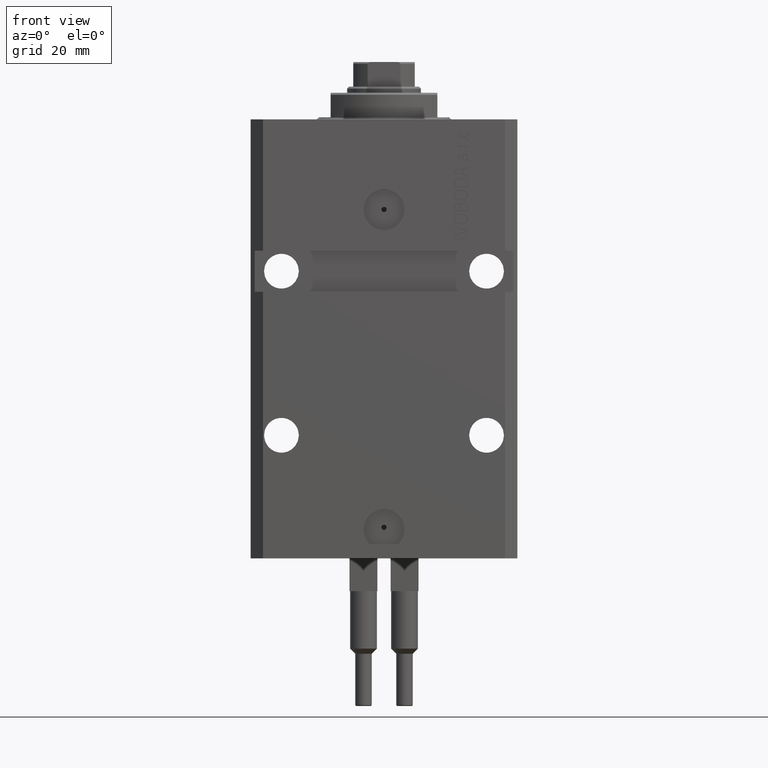
[diagram: clean part render]
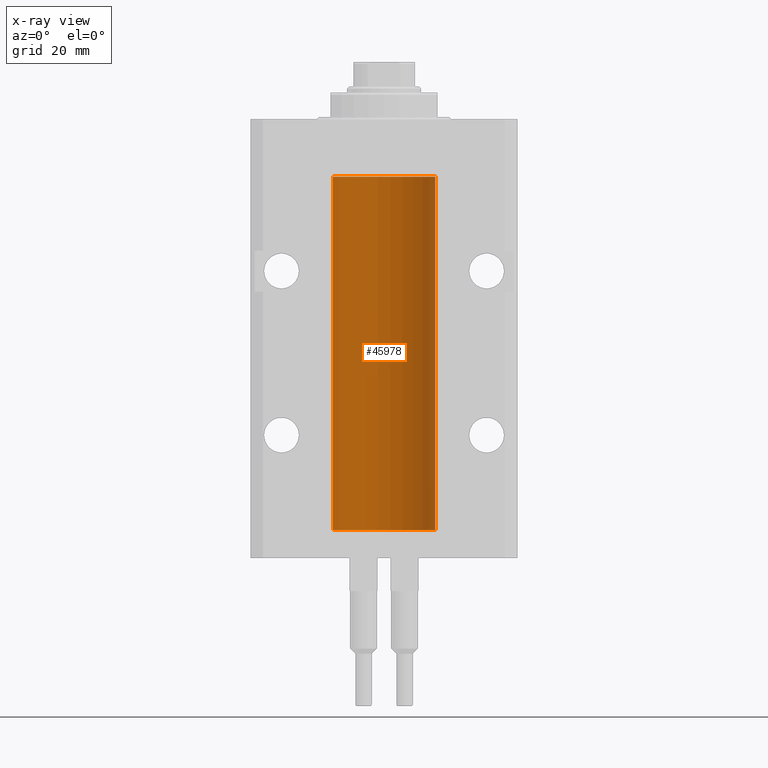
[diagram: x-ray — body ghosted, one internal face saturated and labeled with its STEP entity id]
A machine part, front view, then the same camera in x-ray: the body is ghosted and one INTERNAL B-rep face — a face not visible from any outside direction — is saturated and labeled: STEP entity #45978.
In plain terms, the highlighted cylindrical surface (partial cylindrical patch) has radius 12.5 mm, axis along (0, 0, 1).
Its self-contained STEP definition (entity closure, byte-faithful):
#948 = DIRECTION ( 'NONE',  ( 1.000000000000000000, 0.000000000000000000, 0.000000000000000000 ) ) ;
#1140 = CARTESIAN_POINT ( 'NONE',  ( 0.000000000000000000, 0.000000000000000000, -100.0999999999999943 ) ) ;
#1716 = CARTESIAN_POINT ( 'NONE',  ( -12.50000000000000000, -1.522152011595579853E-14, -94.37500000000000000 ) ) ;
#1837 = DIRECTION ( 'NONE',  ( -0.000000000000000000, -0.000000000000000000, 1.000000000000000000 ) ) ;
#3829 = DIRECTION ( 'NONE',  ( -0.000000000000000000, -0.000000000000000000, 1.000000000000000000 ) ) ;
#4321 = DIRECTION ( 'NONE',  ( -0.000000000000000000, -0.000000000000000000, 1.000000000000000000 ) ) ;
#4697 = CARTESIAN_POINT ( 'NONE',  ( -12.50000000000000000, 1.530808498934191521E-15, -100.0999999999999943 ) ) ;
#5050 = AXIS2_PLACEMENT_3D ( 'NONE', #15889, #9527, #948 ) ;
#5053 = LINE ( 'NONE', #13543, #17771 ) ;
#5061 = FACE_OUTER_BOUND ( 'NONE', #26431, .T. ) ;
#5229 = CARTESIAN_POINT ( 'NONE',  ( -12.49999999999999289, 0.1631761135151241215, -22.62499999999984013 ) ) ;
#5428 = B_SPLINE_CURVE_WITH_KNOTS ( 'NONE', 3,
 ( #5457, #46688, #13763, #43488, #36121, #13521, #20883, #27758, #13043, #27996, #24076, #42996, #17449, #9620 ),
 .UNSPECIFIED., .F., .F.,
 ( 4, 2, 2, 2, 2, 2, 4 ),
 ( 3.486178718436696769E-18, 0.0002442924852390829216, 0.0004885849704781623738, 0.0009771699409563507684, 0.001221462426195465403, 0.001465754911434580254, 0.001954339881912780900 ),
 .UNSPECIFIED. ) ;
#5457 = CARTESIAN_POINT ( 'NONE',  ( -12.50000000000000000, -1.522152011595579853E-14, -94.37500000000000000 ) ) ;
#5508 = LINE ( 'NONE', #46983, #34324 ) ;
#5714 = CARTESIAN_POINT ( 'NONE',  ( -12.49915784441386890, 0.1636601911727947889, -21.39126818989430490 ) ) ;
#5717 = CARTESIAN_POINT ( 'NONE',  ( -12.50000000000017941, 3.883381774819353300E-13, -95.62500000000359535 ) ) ;
#6158 = EDGE_CURVE ( 'NONE', #27783, #25505, #27396, .T. ) ;
#7151 = ORIENTED_EDGE ( 'NONE', *, *, #16225, .F. ) ;
#8691 = VECTOR ( 'NONE', #31947, 1000.000000000000000 ) ;
#8911 = CARTESIAN_POINT ( 'NONE',  ( -12.50000000000000000, -2.089494013101375120E-17, -21.37499999999999645 ) ) ;
#9399 = CARTESIAN_POINT ( 'NONE',  ( -12.48436376893640443, 0.6250290278979917513, -22.08132082824473486 ) ) ;
#9473 = CYLINDRICAL_SURFACE ( 'NONE', #38684, 12.50000000000000000 ) ;
#9527 = DIRECTION ( 'NONE',  ( 0.000000000000000000, 0.000000000000000000, 1.000000000000000000 ) ) ;
#9620 = CARTESIAN_POINT ( 'NONE',  ( -12.50000000000017941, 3.883381774819353300E-13, -95.62500000000359535 ) ) ;
#12673 = CARTESIAN_POINT ( 'NONE',  ( 12.50000000000000000, 0.000000000000000000, -100.0999999999999943 ) ) ;
#12817 = CARTESIAN_POINT ( 'NONE',  ( -12.49011732893843529, 0.5003763274120274218, -22.38348111289287701 ) ) ;
#13043 = CARTESIAN_POINT ( 'NONE',  ( -12.48520330846397997, 0.6088355886774070580, -95.16325431852561678 ) ) ;
#13296 = EDGE_CURVE ( 'NONE', #19291, #15306, #5053, .T. ) ;
#13521 = CARTESIAN_POINT ( 'NONE',  ( -12.48810268015257741, 0.5573155909661239304, -94.67347410093871929 ) ) ;
#13532 = LINE ( 'NONE', #40064, #8691 ) ;
#13543 = CARTESIAN_POINT ( 'NONE',  ( 12.50000000000000000, 0.000000000000000000, -100.0999999999999943 ) ) ;
#13763 = CARTESIAN_POINT ( 'NONE',  ( -12.49915784441387068, 0.1636601911727894876, -94.39126818989429069 ) ) ;
#15091 = CARTESIAN_POINT ( 'NONE',  ( 0.000000000000000000, 0.000000000000000000, -13.99999999999999822 ) ) ;
#15306 = VERTEX_POINT ( 'NONE', #16524 ) ;
#15889 = CARTESIAN_POINT ( 'NONE',  ( 0.000000000000000000, 0.000000000000000000, -100.0999999999999943 ) ) ;
#15922 = CIRCLE ( 'NONE', #34741, 12.50000000000000000 ) ;
#16225 = EDGE_CURVE ( 'NONE', #23534, #17676, #23169, .T. ) ;
#16251 = CARTESIAN_POINT ( 'NONE',  ( -12.48810268015257563, 0.5573155909661349217, -21.67347410093867666 ) ) ;
#16524 = CARTESIAN_POINT ( 'NONE',  ( 12.50000000000000000, 0.000000000000000000, -13.99999999999999822 ) ) ;
#16848 = ORIENTED_EDGE ( 'NONE', *, *, #38156, .T. ) ;
#17449 = CARTESIAN_POINT ( 'NONE',  ( -12.49999999999999112, 0.1631761135151224562, -95.62499999999980105 ) ) ;
#17676 = VERTEX_POINT ( 'NONE', #5717 ) ;
#17771 = VECTOR ( 'NONE', #4321, 1000.000000000000000 ) ;
#19291 = VERTEX_POINT ( 'NONE', #12673 ) ;
#19935 = CARTESIAN_POINT ( 'NONE',  ( -12.50000000000000000, 0.08260426088729219685, -21.37500000000000000 ) ) ;
#20421 = CARTESIAN_POINT ( 'NONE',  ( -12.49625855304193678, 0.3150454781038042329, -21.45402800297484802 ) ) ;
#20661 = CARTESIAN_POINT ( 'NONE',  ( -12.48436813453758454, 0.6249418250771192618, -21.83668996798922635 ) ) ;
#20883 = CARTESIAN_POINT ( 'NONE',  ( -12.48436813453758631, 0.6249418250771134886, -94.83668996798924411 ) ) ;
#21272 = ORIENTED_EDGE ( 'NONE', *, *, #46255, .T. ) ;
#22271 = CIRCLE ( 'NONE', #5050, 12.50000000000000000 ) ;
#22921 = DIRECTION ( 'NONE',  ( 1.000000000000000000, 0.000000000000000000, 0.000000000000000000 ) ) ;
#23169 = LINE ( 'NONE', #37690, #33569 ) ;
#23262 = CARTESIAN_POINT ( 'NONE',  ( -12.50000000000000000, -2.089494013101375120E-17, -21.37499999999999645 ) ) ;
#23534 = VERTEX_POINT ( 'NONE', #4697 ) ;
#23543 = ORIENTED_EDGE ( 'NONE', *, *, #48334, .F. ) ;
#23853 = CARTESIAN_POINT ( 'NONE',  ( -12.49422197749724006, 0.3843754434364375916, -21.50047099568095277 ) ) ;
#24076 = CARTESIAN_POINT ( 'NONE',  ( -12.49011732893843529, 0.5003763274120199833, -95.38348111289285214 ) ) ;
#24167 = DIRECTION ( 'NONE',  ( 1.000000000000000000, 0.000000000000000000, 0.000000000000000000 ) ) ;
#25505 = VERTEX_POINT ( 'NONE', #34967 ) ;
#25843 = EDGE_CURVE ( 'NONE', #36258, #25505, #13532, .T. ) ;
#26431 = EDGE_LOOP ( 'NONE', ( #7151, #23543, #36341, #21272, #45075, #46336, #44405, #16848 ) ) ;
#26833 = DIRECTION ( 'NONE',  ( 0.000000000000000000, 0.000000000000000000, 1.000000000000000000 ) ) ;
#27396 = B_SPLINE_CURVE_WITH_KNOTS ( 'NONE', 3,
 ( #8911, #19935, #5714, #20421, #23853, #16251, #20661, #9399, #31712, #42526, #12817, #38848, #5229, #27774 ),
 .UNSPECIFIED., .F., .F.,
 ( 4, 2, 2, 2, 2, 2, 4 ),
 ( 2.030551168097110502E-20, 0.0002442924852390969078, 0.0004885849704781938157, 0.0009771699409563880650, 0.001221462426195485135, 0.001465754911434582423, 0.001954339881912776130 ),
 .UNSPECIFIED. ) ;
#27758 = CARTESIAN_POINT ( 'NONE',  ( -12.48436376893640620, 0.6250290278979871994, -95.08132082824478459 ) ) ;
#27774 = CARTESIAN_POINT ( 'NONE',  ( -12.50000000000017941, 3.883381646606358354E-13, -22.62500000000358824 ) ) ;
#27783 = VERTEX_POINT ( 'NONE', #23262 ) ;
#27996 = CARTESIAN_POINT ( 'NONE',  ( -12.48809959379011403, 0.5462151254764922026, -95.31461370481613926 ) ) ;
#28999 = VERTEX_POINT ( 'NONE', #35743 ) ;
#29997 = EDGE_CURVE ( 'NONE', #27783, #28999, #5508, .T. ) ;
#31712 = CARTESIAN_POINT ( 'NONE',  ( -12.48520330846397819, 0.6088355886774127201, -22.16325431852561323 ) ) ;
#31947 = DIRECTION ( 'NONE',  ( -0.000000000000000000, -0.000000000000000000, 1.000000000000000000 ) ) ;
#33569 = VECTOR ( 'NONE', #3829, 1000.000000000000000 ) ;
#34324 = VECTOR ( 'NONE', #1837, 1000.000000000000000 ) ;
#34741 = AXIS2_PLACEMENT_3D ( 'NONE', #15091, #26833, #22921 ) ;
#34967 = CARTESIAN_POINT ( 'NONE',  ( -12.50000000000017941, 3.883381646606358354E-13, -22.62500000000358824 ) ) ;
#35743 = CARTESIAN_POINT ( 'NONE',  ( -12.50000000000000000, 1.530808498934191521E-15, -13.99999999999999822 ) ) ;
#36121 = CARTESIAN_POINT ( 'NONE',  ( -12.49422197749723829, 0.3843754434364257122, -94.50047099568094211 ) ) ;
#36258 = VERTEX_POINT ( 'NONE', #1716 ) ;
#36341 = ORIENTED_EDGE ( 'NONE', *, *, #13296, .T. ) ;
#37690 = CARTESIAN_POINT ( 'NONE',  ( -12.50000000000000000, 1.530808498934191521E-15, -100.0999999999999943 ) ) ;
#38156 = EDGE_CURVE ( 'NONE', #36258, #17676, #5428, .T. ) ;
#38684 = AXIS2_PLACEMENT_3D ( 'NONE', #1140, #38918, #24167 ) ;
#38848 = CARTESIAN_POINT ( 'NONE',  ( -12.49631005746706336, 0.3253680783018528255, -22.55856740465392463 ) ) ;
#38918 = DIRECTION ( 'NONE',  ( -0.000000000000000000, -0.000000000000000000, 1.000000000000000000 ) ) ;
#40064 = CARTESIAN_POINT ( 'NONE',  ( -12.50000000000000000, 1.530808498934191521E-15, -100.0999999999999943 ) ) ;
#42526 = CARTESIAN_POINT ( 'NONE',  ( -12.48809959379011403, 0.5462151254764975317, -22.31461370481611795 ) ) ;
#42996 = CARTESIAN_POINT ( 'NONE',  ( -12.49631005746706514, 0.3253680783018457756, -95.55856740465388555 ) ) ;
#43488 = CARTESIAN_POINT ( 'NONE',  ( -12.49625855304194033, 0.3150454781037993479, -94.45402800297488000 ) ) ;
#44405 = ORIENTED_EDGE ( 'NONE', *, *, #25843, .F. ) ;
#45075 = ORIENTED_EDGE ( 'NONE', *, *, #29997, .F. ) ;
#45978 = ADVANCED_FACE ( 'NONE', ( #5061 ), #9473, .F. ) ;
#46255 = EDGE_CURVE ( 'NONE', #15306, #28999, #15922, .T. ) ;
#46336 = ORIENTED_EDGE ( 'NONE', *, *, #6158, .T. ) ;
#46688 = CARTESIAN_POINT ( 'NONE',  ( -12.50000000000000000, 0.08260426088727994276, -94.37499999999998579 ) ) ;
#46983 = CARTESIAN_POINT ( 'NONE',  ( -12.50000000000000000, 1.530808498934191521E-15, -100.0999999999999943 ) ) ;
#48334 = EDGE_CURVE ( 'NONE', #19291, #23534, #22271, .T. ) ;